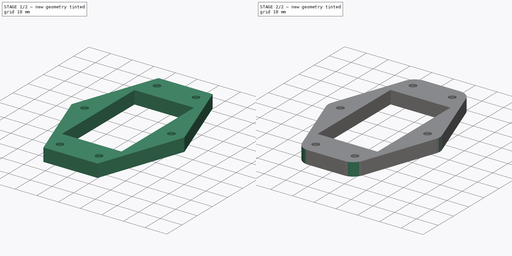
[diagram: build sequence overview — one tinted view per stage of 2, left to right]
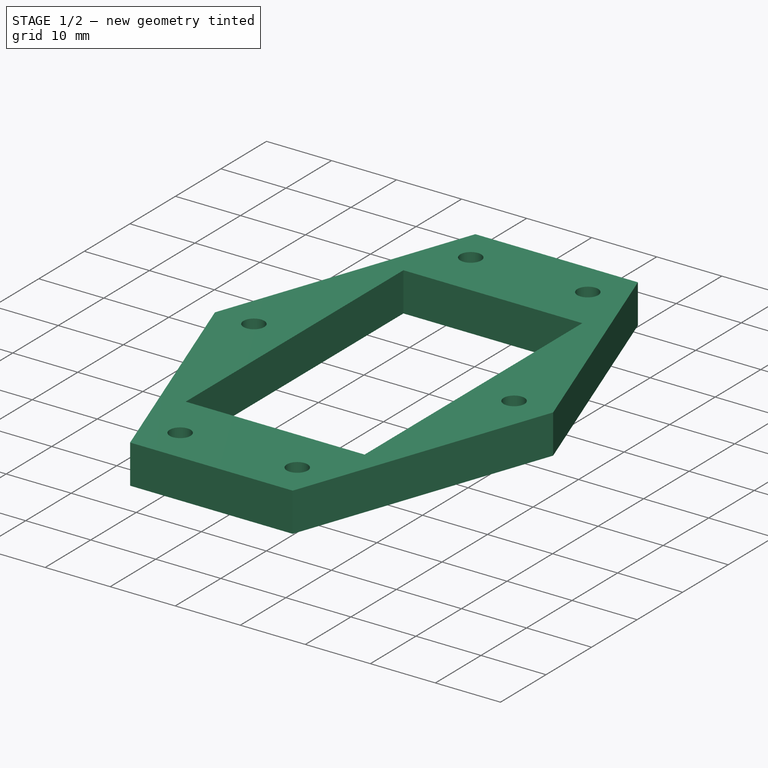
[diagram: stage 1 of 2 — iso view after this stage's code; geometry added in this stage tinted green]
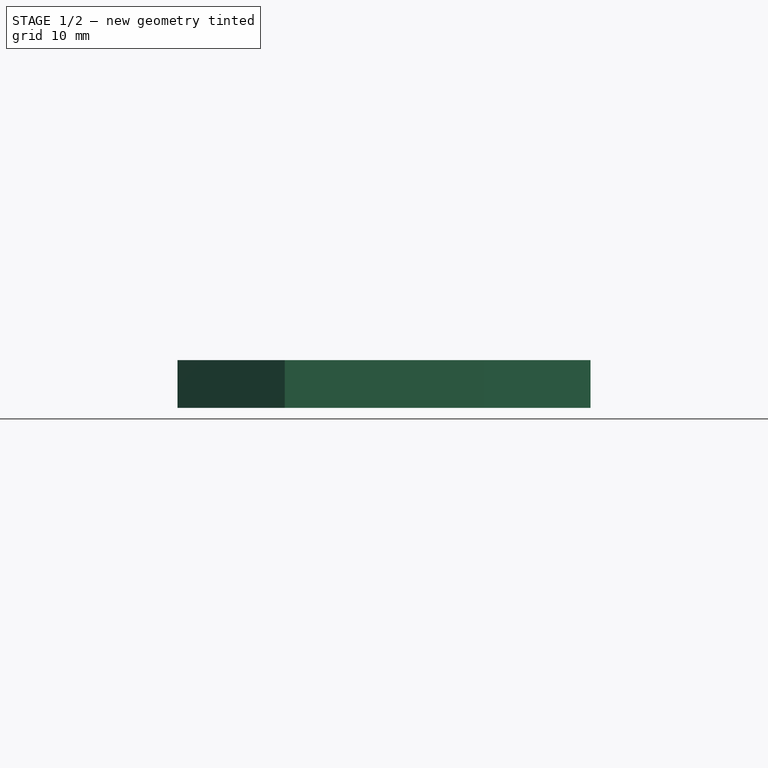
[diagram: stage 1 of 2 — front view after this stage's code; geometry added in this stage tinted green]
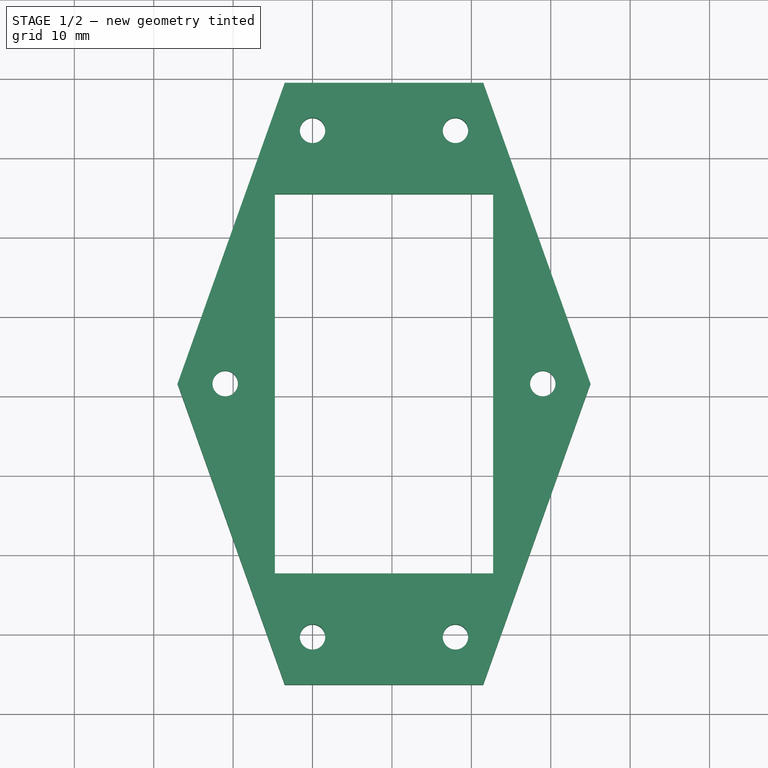
[diagram: stage 1 of 2 — top view after this stage's code; geometry added in this stage tinted green]
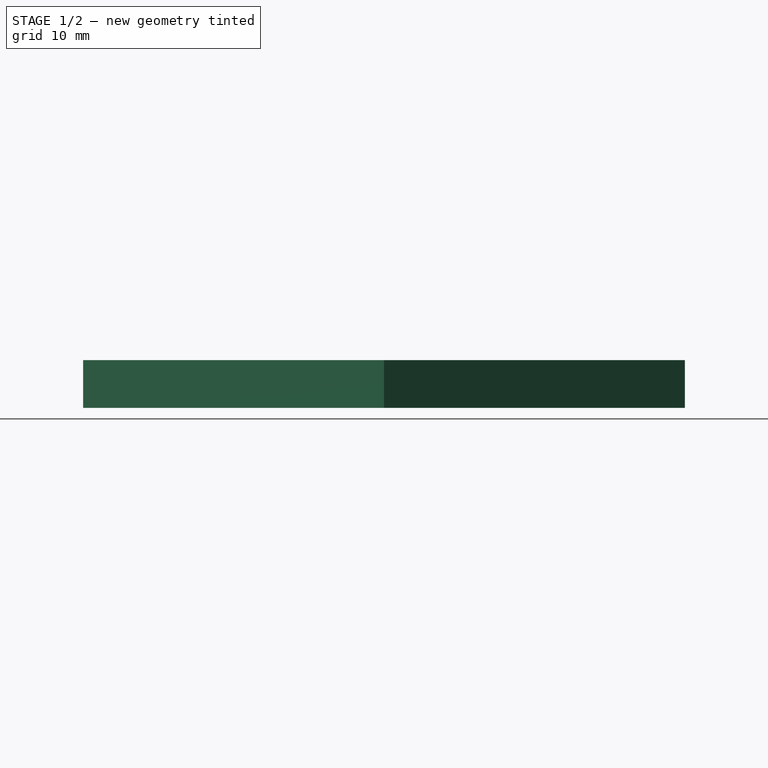
[diagram: stage 1 of 2 — right view after this stage's code; geometry added in this stage tinted green]
FCSTD DOCUMENT  (FreeCAD 0.20R)
Label: socket_washer
License: All rights reserved
LicenseURL: http://en.wikipedia.org/wiki/All_rights_reserved
objects: Sketcher::SketchObject×2, PartDesign::ShapeBinder×1, PartDesign::Pad×1, PartDesign::Pocket×1, PartDesign::Fillet×1, PartDesign::Body×1
note: 10 computed .brp shape members not serialized (recipe doc carries the construction recipe); baked Part::Feature solids carry a one-line shape summary decoded from their .brp

FEATURE [PartDesign::ShapeBinder] ShapeBinder
  TraceSupport = false
FEATURE [Sketcher::SketchObject] Sketch
  ExternalGeometry = -> [ShapeBinder]
  FullyConstrained = true
  MapMode = 5
  Support = -> [ShapeBinder]
  sketch-geometry (19):
    g0: LineSegment StartX=266.5 StartY=-110.55 StartZ=0 EndX=291.5 EndY=-110.55 EndZ=0
    g1: LineSegment StartX=291.5 StartY=-110.55 StartZ=0 EndX=305 EndY=-148.45 EndZ=0
    g2: LineSegment StartX=305 StartY=-148.45 StartZ=0 EndX=291.5 EndY=-186.35 EndZ=0
    g3: LineSegment StartX=291.5 StartY=-186.35 StartZ=0 EndX=266.5 EndY=-186.35 EndZ=0
    g4: LineSegment StartX=266.5 StartY=-186.35 StartZ=0 EndX=253 EndY=-148.45 EndZ=0
    g5: LineSegment StartX=253 StartY=-148.45 StartZ=0 EndX=266.5 EndY=-110.55 EndZ=0
    g6: LineSegment StartX=279 StartY=-110.55 StartZ=0 EndX=279 EndY=-186.35 EndZ=0
    g7: LineSegment StartX=253 StartY=-148.45 StartZ=0 EndX=259 EndY=-148.45 EndZ=0
    g8: LineSegment StartX=305 StartY=-148.45 StartZ=0 EndX=299 EndY=-148.45 EndZ=0
    g9: LineSegment StartX=265.25 StartY=-124.55 StartZ=0 EndX=292.75 EndY=-124.55 EndZ=0
    g10: LineSegment StartX=292.75 StartY=-124.55 StartZ=0 EndX=292.75 EndY=-172.35 EndZ=0
    g11: LineSegment StartX=292.75 StartY=-172.35 StartZ=0 EndX=265.25 EndY=-172.35 EndZ=0
    g12: LineSegment StartX=265.25 StartY=-172.35 StartZ=0 EndX=265.25 EndY=-124.55 EndZ=0
    g13: Circle CenterX=270 CenterY=-116.55 CenterZ=0 NormalX=0 NormalY=0 NormalZ=1 AngleXU=0 Radius=1.6
    g14: Circle CenterX=288 CenterY=-116.55 CenterZ=0 NormalX=0 NormalY=0 NormalZ=1 AngleXU=0 Radius=1.6
    g15: Circle CenterX=299 CenterY=-148.45 CenterZ=0 NormalX=0 NormalY=0 NormalZ=1 AngleXU=0 Radius=1.6
    g16: Circle CenterX=259 CenterY=-148.45 CenterZ=0 NormalX=0 NormalY=0 NormalZ=1 AngleXU=0 Radius=1.6
    g17: Circle CenterX=270 CenterY=-180.35 CenterZ=0 NormalX=0 NormalY=0 NormalZ=1 AngleXU=0 Radius=1.6
    g18: Circle CenterX=288 CenterY=-180.35 CenterZ=0 NormalX=0 NormalY=0 NormalZ=1 AngleXU=0 Radius=1.6
  constraints (44):
    c: Coincident(g0,g1)
    c: Coincident(g1,g2)
    c: Coincident(g2,g3)
    c: Coincident(g3,g4)
    c: Coincident(g4,g5)
    c: Coincident(g5,g0)
    c: PointOnObject(g6,g0)
    c: PointOnObject(g6,g3)
    c: Symmetric(g-3,g-4,g6)
    c: Symmetric(g0,g0,g6)
    c: Coincident(g7,g4)
    c: Coincident(g7,g-5)
    c: Coincident(g8,g1)
    c: Coincident(g8,g-6)
    c: Horizontal(g8)
    c: Horizontal(g7)
    c: Equal(g7,g8)
    c: Symmetric(g0,g3,g7)
    c: Symmetric(g2,g3,g6)
    c: Distance(g4,g1) = 52
    c: Distance(g-4,g0) = 6
    c: DistanceX(g0,g0) = 25
    c: Coincident(g9,g10)
    c: Coincident(g10,g11)
    c: Coincident(g11,g12)
    c: Coincident(g12,g9)
    c: Horizontal(g9)
    c: Horizontal(g11)
    c: Vertical(g10)
    c: Vertical(g12)
    c: Coincident(g9,g-7)
    c: Coincident(g10,g-8)
    c: Coincident(g13,g-3)
    c: Coincident(g14,g-4)
    c: Coincident(g15,g8)
    c: Coincident(g16,g7)
    c: Coincident(g17,g-9)
    c: Coincident(g18,g-10)
    c: Equal(g18,g17)
    c: Equal(g18,g15)
    c: Equal(g18,g14)
    c: Equal(g18,g13)
    c: Equal(g18,g16)
    c: Diameter(g18) = 3.2
FEATURE [PartDesign::Pad] Pad
  Direction = (0,0,1)
  Length = 6
  Length2 = 10
  Profile = -> Sketch
  ReferenceAxis = -> Sketch [N_Axis]
  Type = 0
FEATURE [Sketcher::SketchObject] Sketch001
  ExternalGeometry = -> [Pad]
  FullyConstrained = true
  MapMode = 5
  Placement = pos=(0,0,0) rot=(1,0,0;3.14159rad)
  Support = -> [Pad]
  sketch-geometry (14):
    g0: LineSegment StartX=261.8 StartY=146.833 StartZ=0 EndX=261.8 EndY=150.067 EndZ=0
    g1: LineSegment StartX=261.8 StartY=150.067 StartZ=0 EndX=259 EndY=151.683 EndZ=0
    g2: LineSegment StartX=259 StartY=151.683 StartZ=0 EndX=256.2 EndY=150.067 EndZ=0
    g3: LineSegment StartX=256.2 StartY=150.067 StartZ=0 EndX=256.2 EndY=146.833 EndZ=0
    g4: LineSegment StartX=256.2 StartY=146.833 StartZ=0 EndX=259 EndY=145.217 EndZ=0
    g5: LineSegment StartX=259 StartY=145.217 StartZ=0 EndX=261.8 EndY=146.833 EndZ=0
    g6: Circle CenterX=259 CenterY=148.45 CenterZ=0 NormalX=0 NormalY=0 NormalZ=1 AngleXU=0 Radius=3.23316
    g7: LineSegment StartX=301.8 StartY=146.833 StartZ=0 EndX=301.8 EndY=150.067 EndZ=0
    g8: LineSegment StartX=301.8 StartY=150.067 StartZ=0 EndX=299 EndY=151.683 EndZ=0
    g9: LineSegment StartX=299 StartY=151.683 StartZ=0 EndX=296.2 EndY=150.067 EndZ=0
    g10: LineSegment StartX=296.2 StartY=150.067 StartZ=0 EndX=296.2 EndY=146.833 EndZ=0
    g11: LineSegment StartX=296.2 StartY=146.833 StartZ=0 EndX=299 EndY=145.217 EndZ=0
    g12: LineSegment StartX=299 StartY=145.217 StartZ=0 EndX=301.8 EndY=146.833 EndZ=0
    g13: Circle CenterX=299 CenterY=148.45 CenterZ=0 NormalX=0 NormalY=0 NormalZ=1 AngleXU=0 Radius=3.23316
  constraints (32):
    c: Coincident(g0,g1)
    c: Coincident(g1,g2)
    c: Coincident(g2,g3)
    c: Coincident(g3,g4)
    c: Coincident(g4,g5)
    c: Coincident(g5,g0)
    c: Equal(g0, g1-g5) x5
    c: PointOnObject(g0,g6)
    c: PointOnObject(g1,g6)
    c: PointOnObject(g2,g6)
    c: PointOnObject(g3,g6)
    c: PointOnObject(g4,g6)
    c: PointOnObject(g5,g6)
    c: Coincident(g6,g-3)
    c: Coincident(g7,g8)
    c: Coincident(g8,g9)
    c: Coincident(g9,g10)
    c: Coincident(g10,g11)
    c: Coincident(g11,g12)
    c: Coincident(g12,g7)
    c: Equal(g7, g8-g12) x5
    c: PointOnObject(g7,g13)
    c: PointOnObject(g8,g13)
    c: PointOnObject(g9,g13)
    c: PointOnObject(g10,g13)
    c: PointOnObject(g11,g13)
    c: PointOnObject(g12,g13)
    c: Coincident(g13,g-4)
    c: Vertical(g0)
    c: Vertical(g10)
    c: Distance(g2,g0) = 5.6
    c: Equal(g6,g13)
FEATURE [PartDesign::Pocket] Pocket
  BaseFeature = -> Pad
  Direction = (0,0,1)
  Length = 2.5
  Length2 = 5
  Profile = -> Sketch001
  ReferenceAxis = -> Sketch001 [N_Axis]
  Type = 0
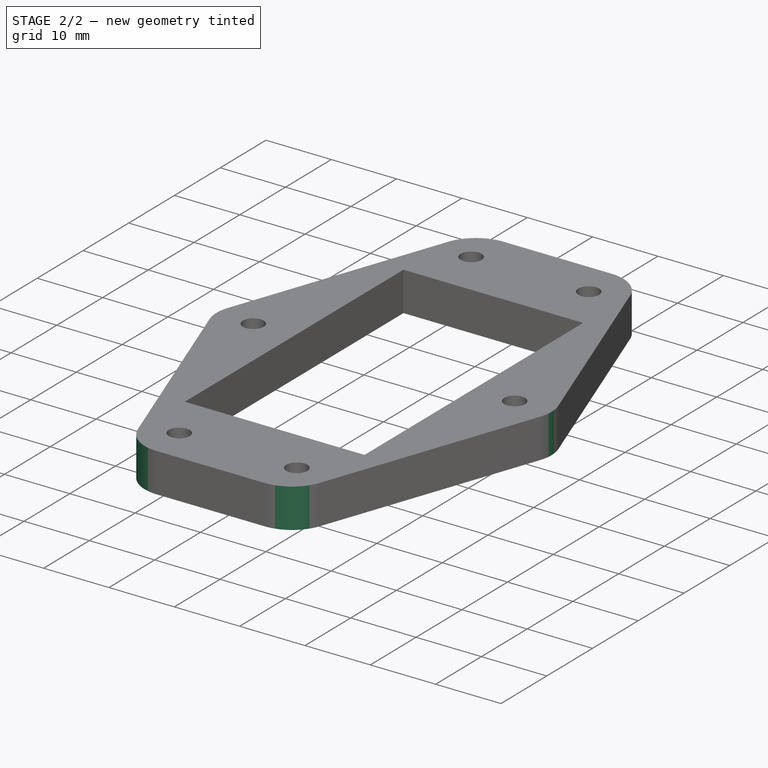
[diagram: stage 2 of 2 — iso view after this stage's code; geometry added in this stage tinted green]
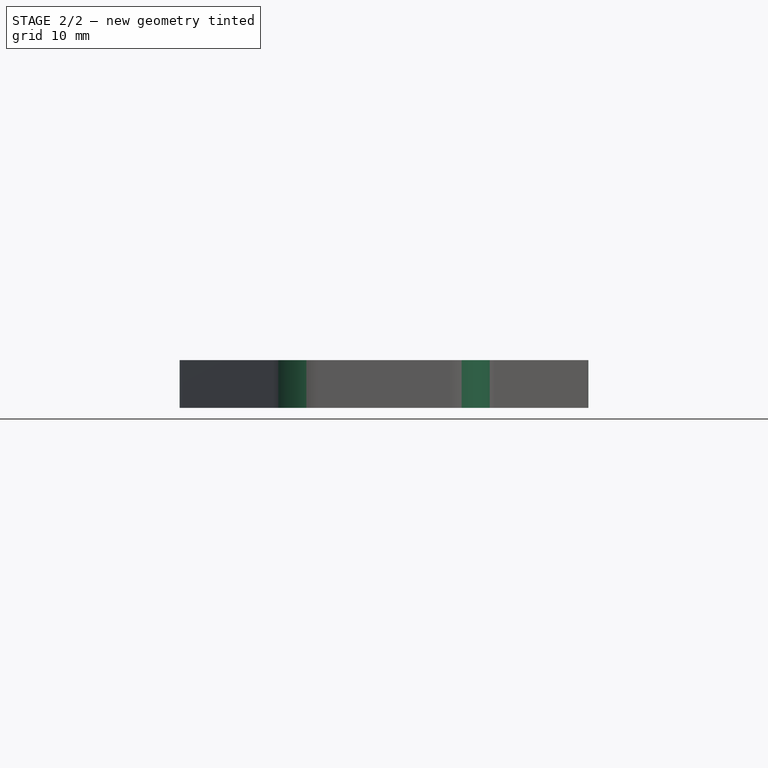
[diagram: stage 2 of 2 — front view after this stage's code; geometry added in this stage tinted green]
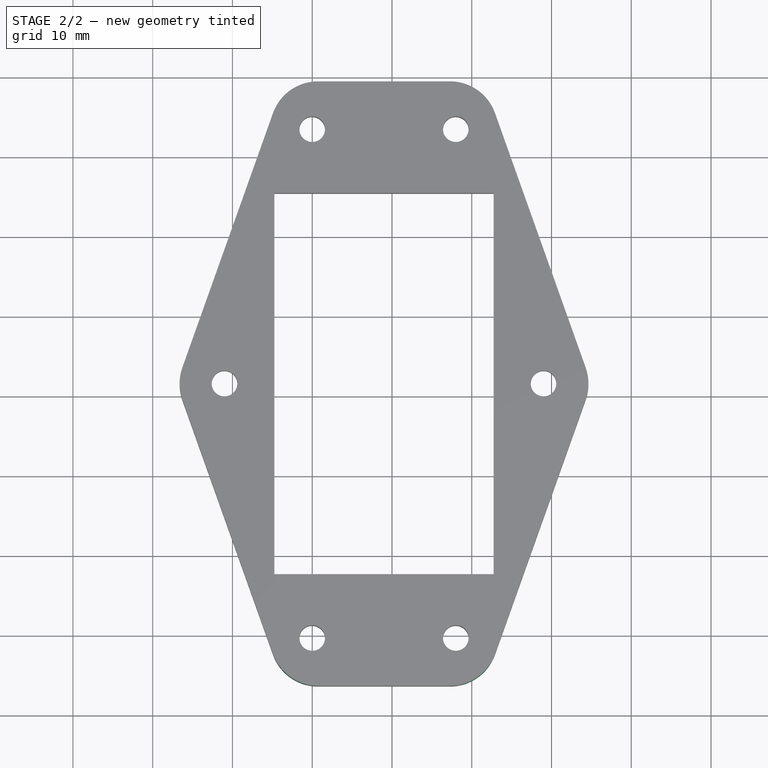
[diagram: stage 2 of 2 — top view after this stage's code; geometry added in this stage tinted green]
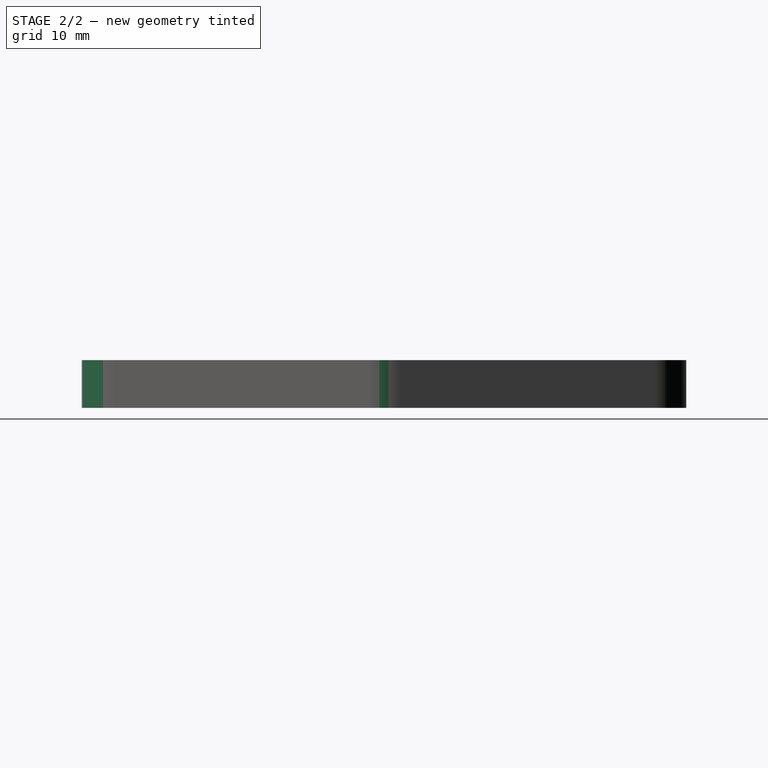
[diagram: stage 2 of 2 — right view after this stage's code; geometry added in this stage tinted green]
FEATURE [PartDesign::Fillet] Fillet
  Base = -> Pocket [Edge2,Edge1,Edge5,Edge47,Edge48,Edge8]
  BaseFeature = -> Pocket
  Radius = 6
  SupportTransform = false
  UseAllEdges = false
FEATURE [PartDesign::Body] Body
  Group = -> [ShapeBinder,Sketch,Pad,Sketch001,Pocket,Fillet]
  Origin = -> Origin
  Tip = -> Fillet
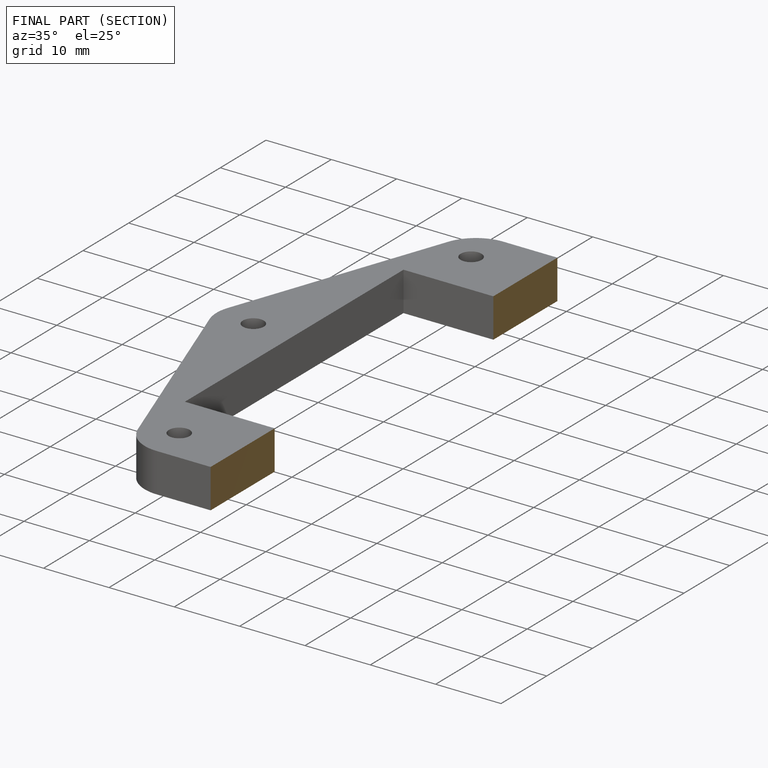
[diagram: finished part — half-section view (interior)]
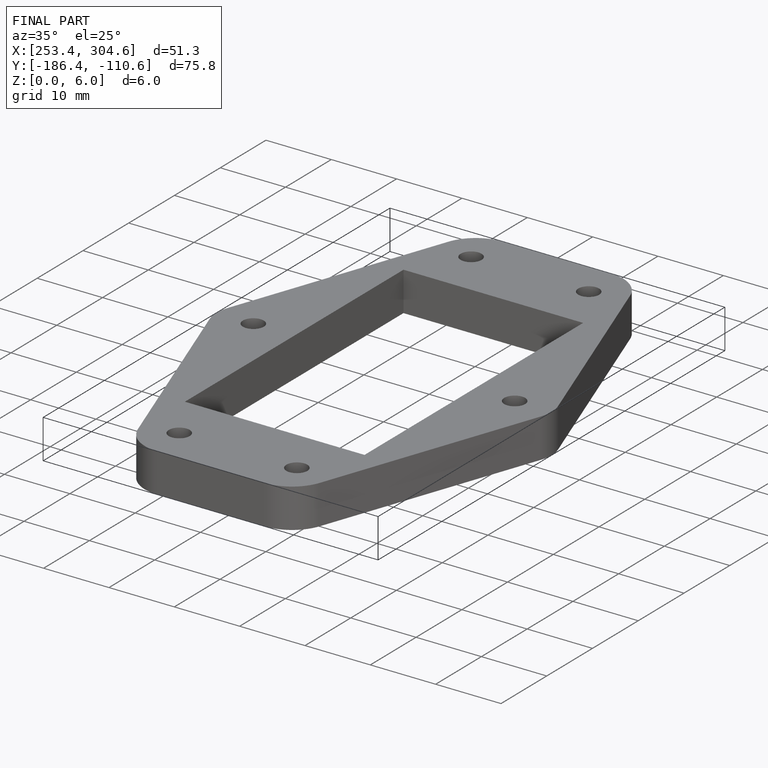
[diagram: finished part — iso view with bounding-box wireframe]
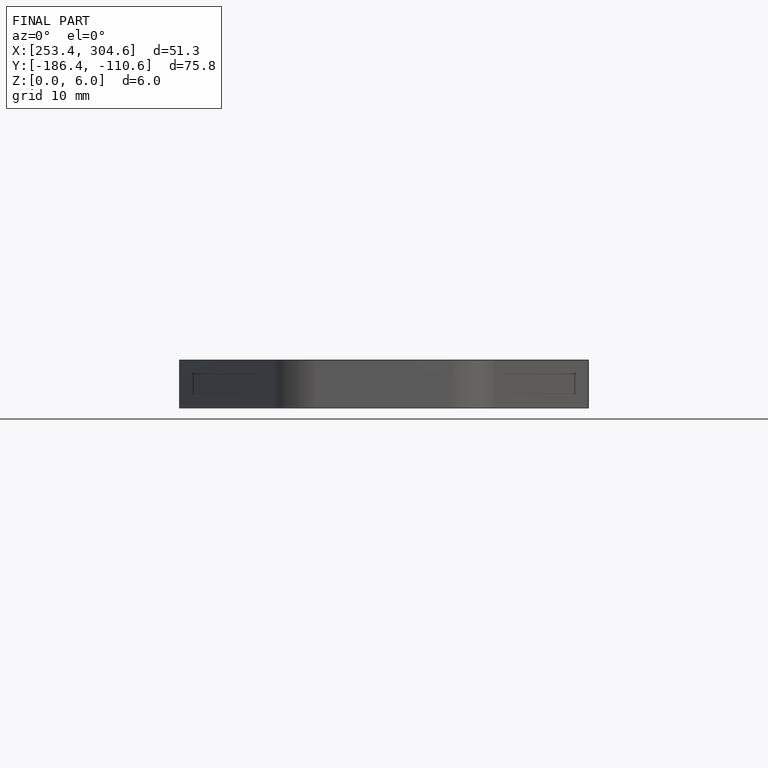
[diagram: finished part — front view with bounding-box wireframe]
